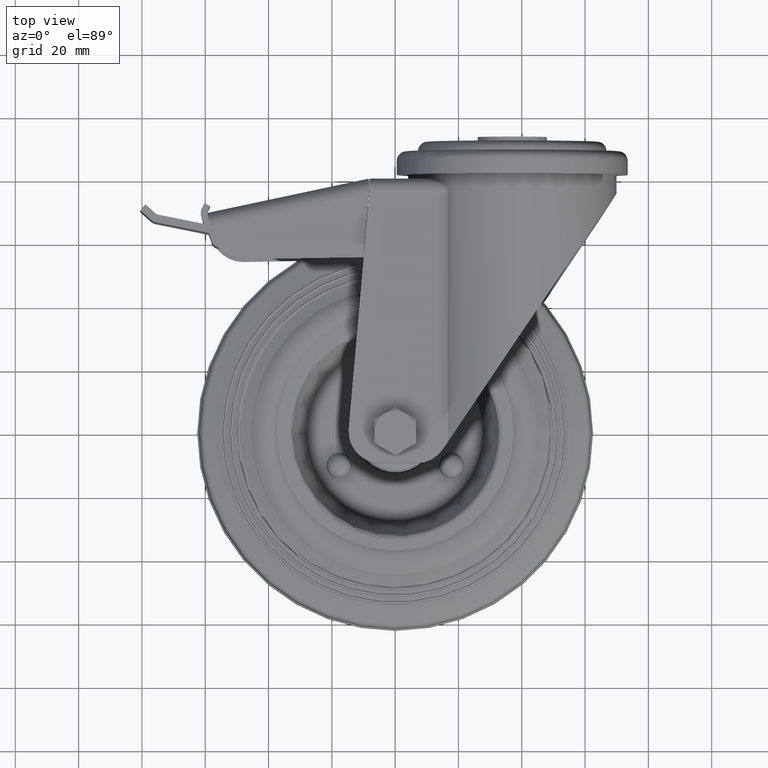
[diagram: clean part render]
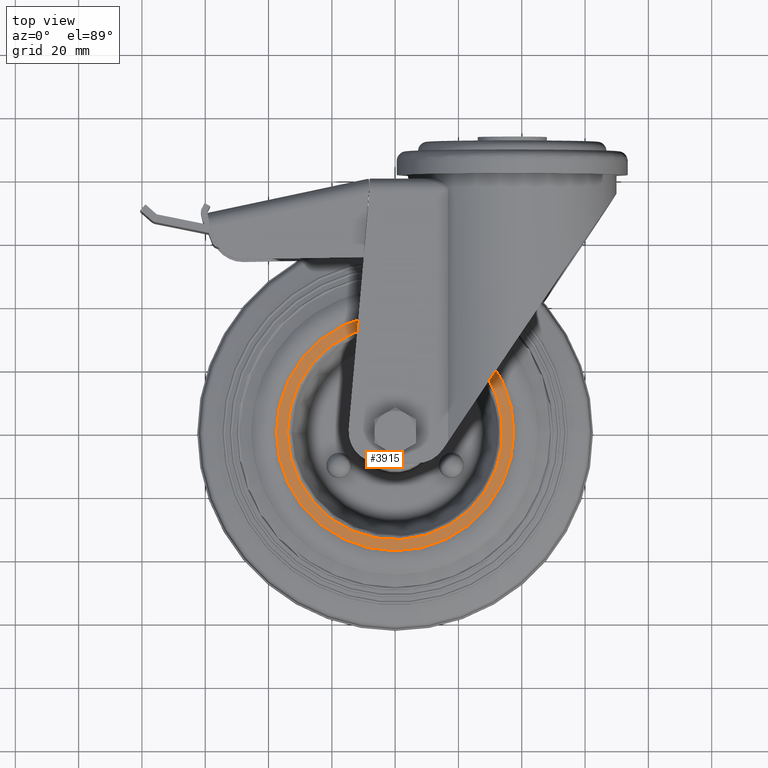
[diagram: same view with one face highlighted and labeled with its STEP entity id]
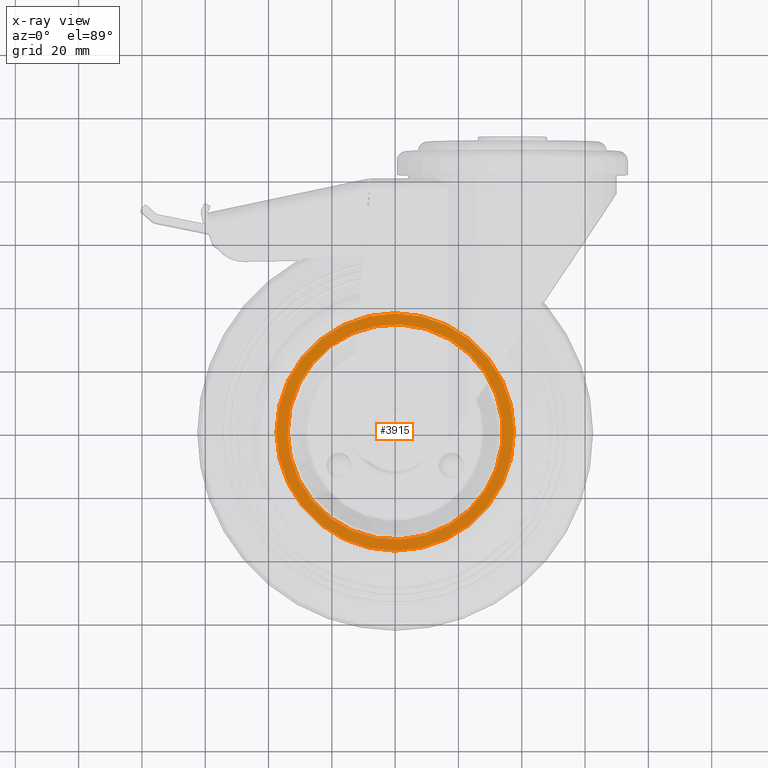
[diagram: x-ray of the same camera — body ghosted, the highlighted face saturated]
A machine part, top view. The second image highlights one B-rep face of the part: STEP entity #3915.
The next image is the same camera in x-ray: the body ghosted, the highlighted face saturated — about 0% of this face is hidden behind the body in this view.
In plain terms, the highlighted planar face has unit normal (0, 0, 1).
Its self-contained STEP definition (entity closure, byte-faithful):
#389=FACE_BOUND('',#1038,.T.);
#523=CIRCLE('',#4485,34.);
#524=CIRCLE('',#4487,37.5);
#780=FACE_OUTER_BOUND('',#1037,.T.);
#1037=EDGE_LOOP('',(#3425));
#1038=EDGE_LOOP('',(#3426));
#1947=VERTEX_POINT('',#6831);
#1948=VERTEX_POINT('',#6835);
#2450=EDGE_CURVE('',#1947,#1947,#523,.T.);
#2451=EDGE_CURVE('',#1948,#1948,#524,.T.);
#3425=ORIENTED_EDGE('',*,*,#2451,.T.);
#3426=ORIENTED_EDGE('',*,*,#2450,.F.);
#3726=PLANE('',#4486);
#3915=ADVANCED_FACE('',(#780,#389),#3726,.T.);
#4485=AXIS2_PLACEMENT_3D('',#6833,#5528,#5529);
#4486=AXIS2_PLACEMENT_3D('',#6834,#5530,#5531);
#4487=AXIS2_PLACEMENT_3D('',#6836,#5532,#5533);
#5528=DIRECTION('center_axis',(1.,0.,0.));
#5529=DIRECTION('ref_axis',(0.,0.,-1.));
#5530=DIRECTION('center_axis',(1.,0.,0.));
#5531=DIRECTION('ref_axis',(0.,0.,-1.));
#5532=DIRECTION('center_axis',(1.,0.,0.));
#5533=DIRECTION('ref_axis',(0.,0.,-1.));
#6831=CARTESIAN_POINT('',(39.7,-4.163799117101E-15,34.));
#6833=CARTESIAN_POINT('Origin',(39.7,0.,0.));
#6834=CARTESIAN_POINT('Origin',(39.7,34.,0.));
#6835=CARTESIAN_POINT('',(39.7,-4.59242549680258E-15,37.5));
#6836=CARTESIAN_POINT('Origin',(39.7,0.,0.));